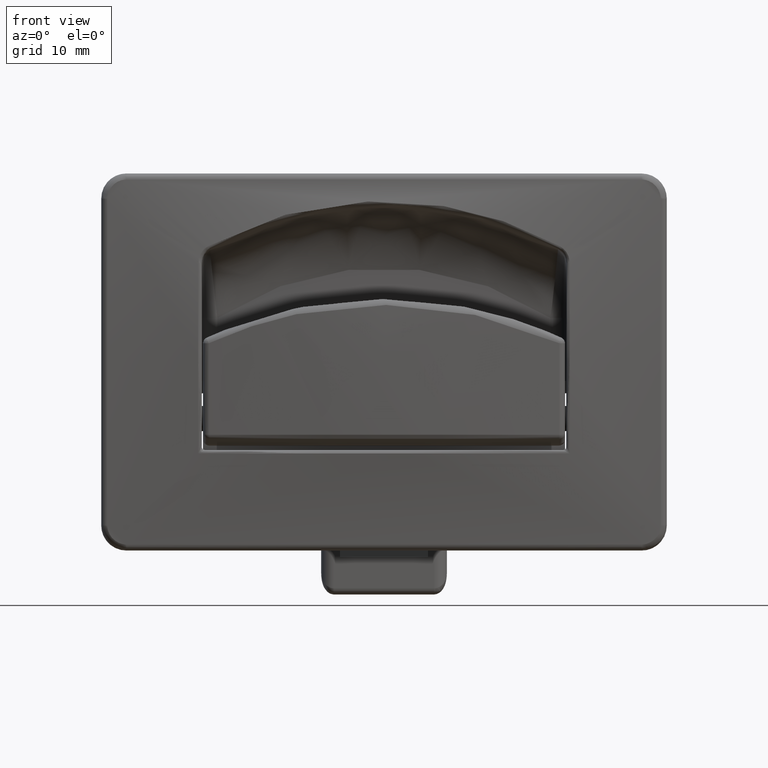
[diagram: clean part render]
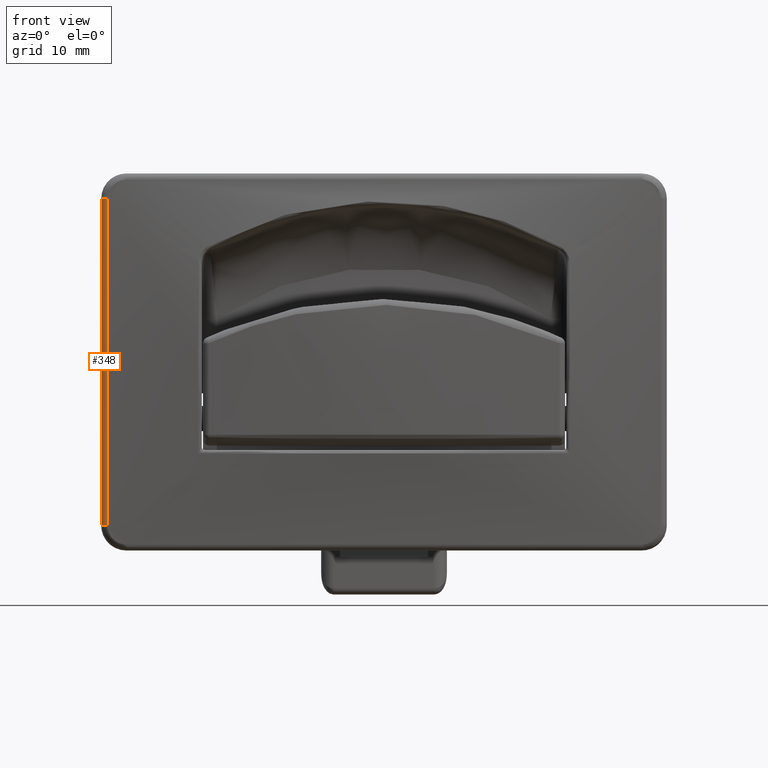
[diagram: same view with one face highlighted and labeled with its STEP entity id]
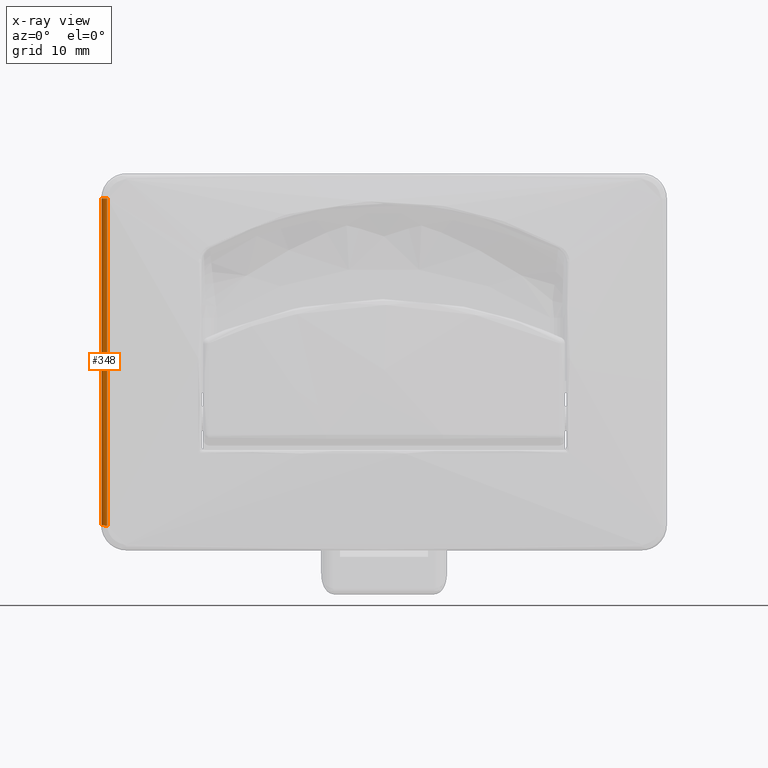
[diagram: x-ray of the same camera — body ghosted, the highlighted face saturated]
A machine part, front view. The second image highlights one B-rep face of the part: STEP entity #348.
The next image is the same camera in x-ray: the body ghosted, the highlighted face saturated — about 0% of this face is hidden behind the body in this view.
In plain terms, the highlighted face is a freeform B-spline surface patch.
Its self-contained STEP definition (entity closure, byte-faithful):
#348=ADVANCED_FACE('',(#2377),#2376,.T.);
#2376=( BOUNDED_SURFACE() B_SPLINE_SURFACE( 3,2,((#4814,#4815,#4816),(#4817,#4818,#4819),(#4820,#4821,#4822),(#4823,#4824,#4825),(#4826,#4827,#4828),(#4829,#4830,#4831)), .UNSPECIFIED.,.F.,.F.,.F.) B_SPLINE_SURFACE_WITH_KNOTS((4,2,4),(3,3),(-2.94902990916E-17,2.60004020423E-02,5.20008040846E-02),(0.00000000000E+00,1.00000000000E+00), .UNSPECIFIED. ) GEOMETRIC_REPRESENTATION_ITEM() RATIONAL_B_SPLINE_SURFACE(((1.00000000000E+00,7.19352275105E-01,1.00000000000E+00),(1.00000000000E+00,7.45317807499E-01,1.00000000000E+00),(1.00000000000E+00,7.65877031205E-01,1.00000000000E+00),(1.00000000000E+00,7.65876964657E-01,1.00000000000E+00),(1.00000000000E+00,7.45317750698E-01,1.00000000000E+00),(1.00000000000E+00,7.19352275105E-01,1.00000000000E+00))) REPRESENTATION_ITEM('') SURFACE() );
#2377=FACE_OUTER_BOUND('',#4832,.T.);
#4814=CARTESIAN_POINT('',(-4.40349353914E+01,-2.03381296532E+00,3.99164220105E+00));
#4815=CARTESIAN_POINT('',(-4.50000000000E+01,-2.00007864215E+00,3.99192432782E+00));
#4816=CARTESIAN_POINT('',(-4.50000000000E+01,-1.03445834077E+00,4.00000000000E+00));
#4817=CARTESIAN_POINT('',(-4.41095648273E+01,-2.10369574394E+00,1.26595806138E+01));
#4818=CARTESIAN_POINT('',(-4.50000000001E+01,-2.00040618234E+00,1.23584629749E+01));
#4819=CARTESIAN_POINT('',(-4.50000000000E+01,-1.10693778660E+00,1.26664766456E+01));
#4820=CARTESIAN_POINT('',(-4.41731352030E+01,-2.14676126594E+00,2.13289904483E+01));
#4821=CARTESIAN_POINT('',(-4.50000000001E+01,-2.00140672697E+00,2.13296159169E+01));
#4822=CARTESIAN_POINT('',(-4.50000000000E+01,-1.16186319936E+00,2.13332259677E+01));
#4823=CARTESIAN_POINT('',(-4.41731351008E+01,-2.14676119409E+00,3.86710304334E+01));
#4824=CARTESIAN_POINT('',(-4.49999999999E+01,-2.00140672541E+00,3.86704057167E+01));
#4825=CARTESIAN_POINT('',(-4.50000000000E+01,-1.16186310962E+00,3.86667949039E+01));
#4826=CARTESIAN_POINT('',(-4.41095645163E+01,-2.10369545258E+00,4.73404555251E+01));
#4827=CARTESIAN_POINT('',(-4.50000000002E+01,-2.00040618093E+00,4.76415712693E+01));
#4828=CARTESIAN_POINT('',(-4.50000000000E+01,-1.10693748442E+00,4.73335594857E+01));
#4829=CARTESIAN_POINT('',(-4.40349353914E+01,-2.03381296532E+00,5.60083577989E+01));
#4830=CARTESIAN_POINT('',(-4.50000000000E+01,-2.00007864215E+00,5.60080756722E+01));
#4831=CARTESIAN_POINT('',(-4.50000000000E+01,-1.03445834077E+00,5.60000000000E+01));
#4832=EDGE_LOOP('',(#6083,#6084,#6085,#6086));
#6083=ORIENTED_EDGE('',*,*,#6442,.T.);
#6084=ORIENTED_EDGE('',*,*,#6634,.F.);
#6085=ORIENTED_EDGE('',*,*,#6451,.F.);
#6086=ORIENTED_EDGE('',*,*,#6721,.F.);
#6442=EDGE_CURVE('',#8489,#8482,#8490,.T.);
#6451=EDGE_CURVE('',#8515,#8550,#8551,.T.);
#6634=EDGE_CURVE('',#8550,#8482,#9783,.T.);
#6721=EDGE_CURVE('',#8489,#8515,#10335,.T.);
#8482=VERTEX_POINT('',#11698);
#8489=VERTEX_POINT('',#11715);
#8490=CIRCLE('',#11719,1.00000000000E+00);
#8515=VERTEX_POINT('',#11746);
#8550=VERTEX_POINT('',#11783);
#8551=CIRCLE('',#11787,1.00000000000E+00);
#9783=(BOUNDED_CURVE() B_SPLINE_CURVE(3,(#12948,#12949,#12950,#12951,#12952,#12953),.UNSPECIFIED.,.F.,.F.) B_SPLINE_CURVE_WITH_KNOTS((4,2,4),(0.00000000000E+00,2.60090027604E-02,5.20180055209E-02),.UNSPECIFIED.) CURVE() GEOMETRIC_REPRESENTATION_ITEM() RATIONAL_B_SPLINE_CURVE((1.00000000000E+00,1.00000000000E+00,1.00000000000E+00,1.00000000000E+00,1.00000000000E+00,1.00000000000E+00)) REPRESENTATION_ITEM('') );
#10335=(BOUNDED_CURVE() B_SPLINE_CURVE(3,(#13353,#13354,#13355,#13356,#13357,#13358),.UNSPECIFIED.,.F.,.F.) B_SPLINE_CURVE_WITH_KNOTS((4,2,4),(0.00000000000E+00,2.60004020423E-02,5.20008040846E-02),.UNSPECIFIED.) CURVE() GEOMETRIC_REPRESENTATION_ITEM() RATIONAL_B_SPLINE_CURVE((1.00000000000E+00,1.00000000000E+00,1.00000000000E+00,1.00000000000E+00,1.00000000000E+00,1.00000000000E+00)) REPRESENTATION_ITEM('') );
#11698=CARTESIAN_POINT('',(-4.40349353914E+01,-2.03381296532E+00,3.99164220105E+00));
#11715=CARTESIAN_POINT('',(-4.50000000000E+01,-1.03445834077E+00,4.00000000000E+00));
#11716=CARTESIAN_POINT('',(-4.40000000000E+01,-1.03445834077E+00,4.00000000000E+00));
#11717=DIRECTION('',(8.67331406615E-16,-8.36290389087E-03,9.99965030308E-01));
#11718=DIRECTION('',(-0.00000000000E+00,9.99965030308E-01,8.36290389087E-03));
#11719=AXIS2_PLACEMENT_3D('',#11716,#11717,#11718);
#11746=CARTESIAN_POINT('',(-4.50000000000E+01,-1.03445834077E+00,5.60000000000E+01));
#11783=CARTESIAN_POINT('',(-4.40349353914E+01,-2.03381296532E+00,5.60083577989E+01));
#11784=CARTESIAN_POINT('',(-4.40000000000E+01,-1.03445834077E+00,5.60000000000E+01));
#11785=DIRECTION('',(0.00000000000E+00,8.36290389088E-03,9.99965030308E-01));
#11786=DIRECTION('',(-0.00000000000E+00,9.99965030308E-01,-8.36290389088E-03));
#11787=AXIS2_PLACEMENT_3D('',#11784,#11785,#11786);
#12948=CARTESIAN_POINT('',(-4.40349353914E+01,-2.03381296532E+00,5.60083577989E+01));
#12949=CARTESIAN_POINT('',(-4.41095750512E+01,-2.10370531765E+00,4.73392319080E+01));
#12950=CARTESIAN_POINT('',(-4.41731350489E+01,-2.14676115749E+00,3.86697068410E+01));
#12951=CARTESIAN_POINT('',(-4.41731352550E+01,-2.14676130254E+00,2.13303353180E+01));
#12952=CARTESIAN_POINT('',(-4.41095751741E+01,-2.10370543272E+00,1.26607823650E+01));
#12953=CARTESIAN_POINT('',(-4.40349353914E+01,-2.03381296532E+00,3.99164220105E+00));
#13353=CARTESIAN_POINT('',(-4.50000000000E+01,-1.03445834077E+00,4.00000000000E+00));
#13354=CARTESIAN_POINT('',(-4.50000000000E+01,-1.10693806843E+00,1.26665103437E+01));
#13355=CARTESIAN_POINT('',(-4.50000000000E+01,-1.16186319937E+00,2.13332259677E+01));
#13356=CARTESIAN_POINT('',(-4.50000000000E+01,-1.16186310961E+00,3.86667949039E+01));
#13357=CARTESIAN_POINT('',(-4.50000000000E+01,-1.10693800284E+00,4.73334974990E+01));
#13358=CARTESIAN_POINT('',(-4.50000000000E+01,-1.03445834077E+00,5.60000000000E+01));